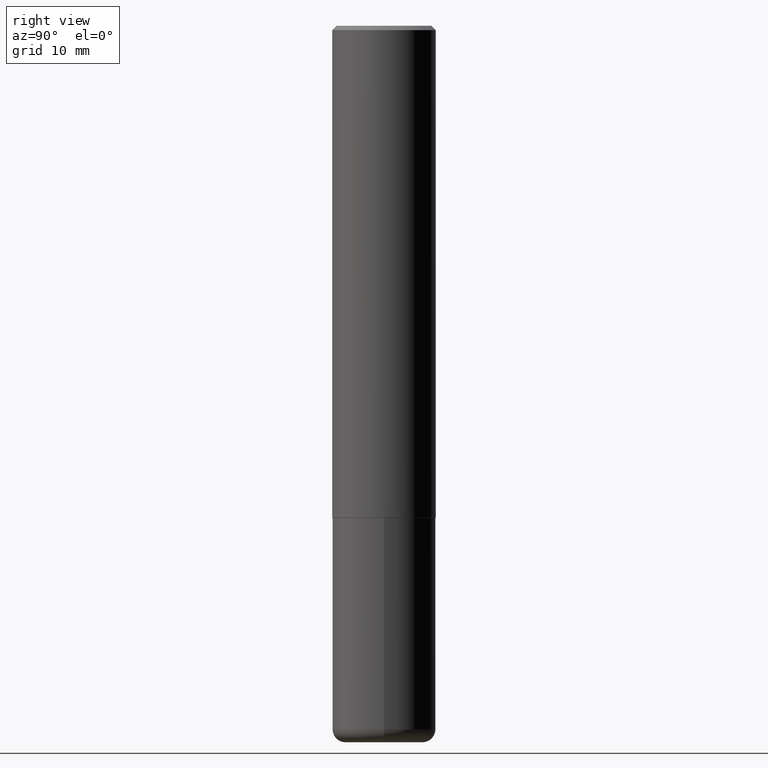
[diagram: clean part render]
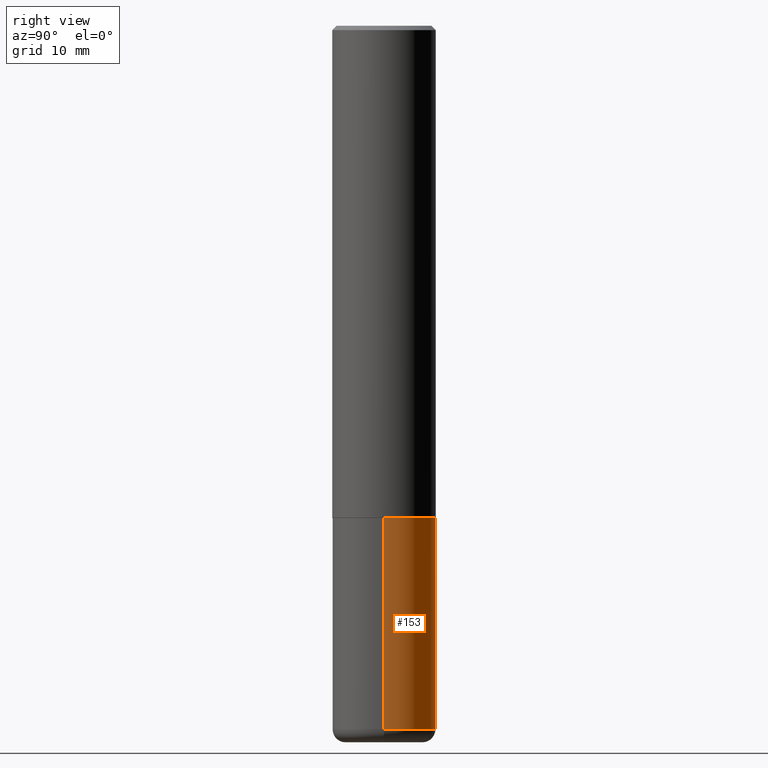
[diagram: same view with one face highlighted and labeled with its STEP entity id]
A machine part, right view. The second image highlights one B-rep face of the part: STEP entity #153.
In plain terms, the highlighted cylindrical surface (partial cylindrical patch) has radius 5.9995 mm, axis along (-0, 0, 1).
Its self-contained STEP definition (entity closure, byte-faithful):
#1 = DIRECTION ( 'NONE',  ( -2.445468806185136877E-29, 3.491481338843145188E-15, 1.000000000000000000 ) ) ;
#7 = AXIS2_PLACEMENT_3D ( 'NONE', #313, #120, #277 ) ;
#16 = EDGE_CURVE ( 'NONE', #304, #255, #306, .T. ) ;
#17 = AXIS2_PLACEMENT_3D ( 'NONE', #76, #243, #271 ) ;
#36 = VECTOR ( 'NONE', #141, 39.37007874015748143 ) ;
#41 = CARTESIAN_POINT ( 'NONE',  ( 7.844819383361301131E-29, -1.120032298687492830E-14, -3.207900000000000418 ) ) ;
#43 = ORIENTED_EDGE ( 'NONE', *, *, #373, .F. ) ;
#55 = CARTESIAN_POINT ( 'NONE',  ( -0.2361999999999999378, -9.522021045009570331E-15, -3.207900000000000418 ) ) ;
#60 = CIRCLE ( 'NONE', #314, 0.2362000000000000210 ) ;
#64 = EDGE_CURVE ( 'NONE', #211, #255, #299, .T. ) ;
#76 = CARTESIAN_POINT ( 'NONE',  ( 0.000000000000000000, 0.000000000000000000, 0.000000000000000000 ) ) ;
#84 = VERTEX_POINT ( 'NONE', #149 ) ;
#111 = FACE_OUTER_BOUND ( 'NONE', #173, .T. ) ;
#120 = DIRECTION ( 'NONE',  ( -2.445468806185136597E-29, 3.491481338843145583E-15, 1.000000000000000000 ) ) ;
#130 = LINE ( 'NONE', #227, #385 ) ;
#135 = EDGE_CURVE ( 'NONE', #84, #211, #60, .T. ) ;
#141 = DIRECTION ( 'NONE',  ( -2.445468806185136877E-29, 3.491481338843145188E-15, 1.000000000000000000 ) ) ;
#149 = CARTESIAN_POINT ( 'NONE',  ( 0.2361999999999999378, -1.284969877134442325E-14, -3.207900000000000418 ) ) ;
#153 = ADVANCED_FACE ( 'NONE', ( #111 ), #365, .T. ) ;
#172 = DIRECTION ( 'NONE',  ( 1.000000000000000000, -6.982962677686264344E-15, 0.000000000000000000 ) ) ;
#173 = EDGE_LOOP ( 'NONE', ( #215, #375, #368, #43 ) ) ;
#211 = VERTEX_POINT ( 'NONE', #55 ) ;
#215 = ORIENTED_EDGE ( 'NONE', *, *, #135, .T. ) ;
#227 = CARTESIAN_POINT ( 'NONE',  ( 0.2361999999999999933, -1.649375784469496131E-15, 1.151752954443000088E-29 ) ) ;
#243 = DIRECTION ( 'NONE',  ( -2.445468806185136597E-29, 3.491481338843145583E-15, 1.000000000000000000 ) ) ;
#255 = VERTEX_POINT ( 'NONE', #311 ) ;
#267 = DIRECTION ( 'NONE',  ( -2.445468806185136597E-29, 3.491481338843145583E-15, 1.000000000000000000 ) ) ;
#271 = DIRECTION ( 'NONE',  ( 1.000000000000000000, -6.982962677686266711E-15, 4.876176775795936353E-29 ) ) ;
#277 = DIRECTION ( 'NONE',  ( 1.000000000000000000, -6.982962677686269077E-15, 0.000000000000000000 ) ) ;
#283 = CARTESIAN_POINT ( 'NONE',  ( 0.2361999999999999933, -9.484609056967400443E-15, -2.244100000000000428 ) ) ;
#299 = LINE ( 'NONE', #305, #36 ) ;
#304 = VERTEX_POINT ( 'NONE', #283 ) ;
#305 = CARTESIAN_POINT ( 'NONE',  ( -0.2361999999999999933, 1.678301941865356591E-15, -1.161852468318208757E-29 ) ) ;
#306 = CIRCLE ( 'NONE', #7, 0.2361999999999999933 ) ;
#311 = CARTESIAN_POINT ( 'NONE',  ( -0.2361999999999999933, -7.839476187821059716E-15, -2.244100000000000428 ) ) ;
#313 = CARTESIAN_POINT ( 'NONE',  ( 5.487876547960065873E-29, -7.835233272497903917E-15, -2.244100000000000428 ) ) ;
#314 = AXIS2_PLACEMENT_3D ( 'NONE', #41, #267, #172 ) ;
#365 = CYLINDRICAL_SURFACE ( 'NONE', #17, 0.2361999999999999933 ) ;
#368 = ORIENTED_EDGE ( 'NONE', *, *, #16, .F. ) ;
#373 = EDGE_CURVE ( 'NONE', #84, #304, #130, .T. ) ;
#375 = ORIENTED_EDGE ( 'NONE', *, *, #64, .T. ) ;
#385 = VECTOR ( 'NONE', #1, 39.37007874015748143 ) ;